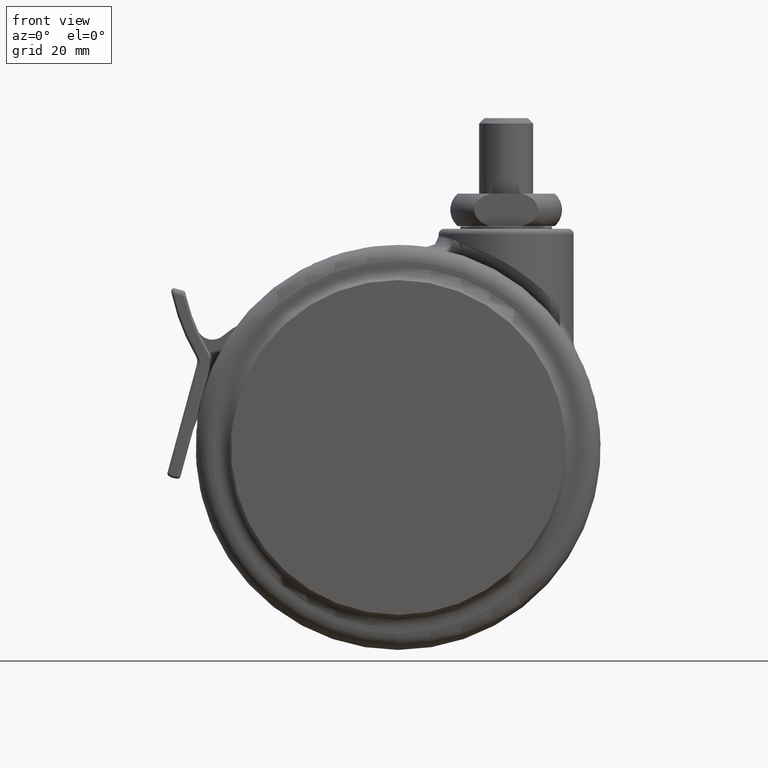
[diagram: clean part render]
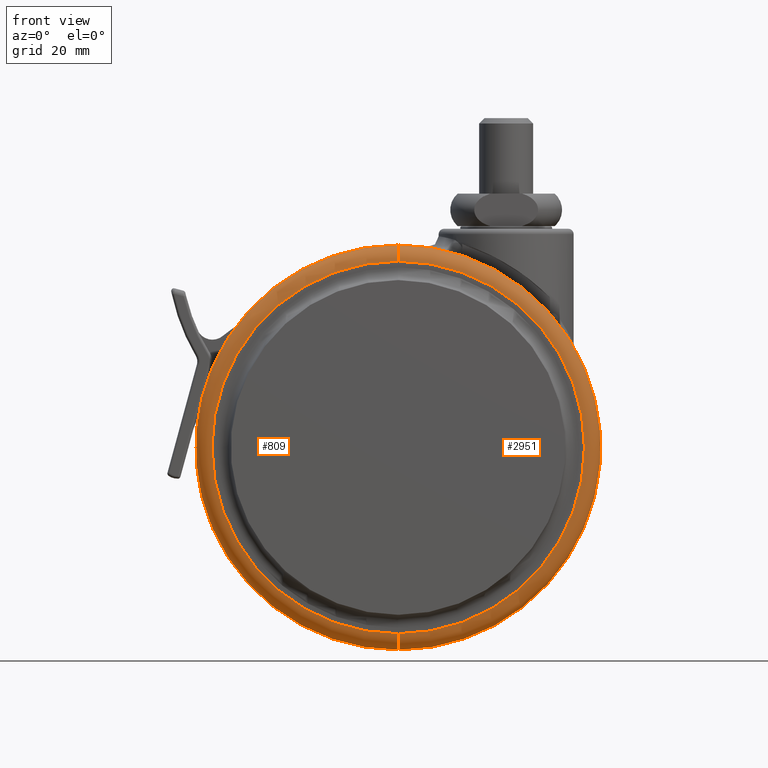
[diagram: same view with one multi-face feature highlighted, each face labeled with its STEP entity id]
A machine part, front view. The highlighted faces form ONE feature: a constant-radius fillet chain: 2 tangent blend faces with common blend radius 3 mm. The faces share edges in the B-rep.
Their STEP definitions:
[1] entity #809 (Torus):
#184 = CIRCLE ( 'NONE', #8429, 34.50000000000000700 ) ;
#292 = CARTESIAN_POINT ( 'NONE',  ( -19.99999999999999600, -18.50000000000000000, -3.000000000000000400 ) ) ;
#394 = DIRECTION ( 'NONE',  ( 0.0000000000000000000, -1.000000000000000000, 0.0000000000000000000 ) ) ;
#439 = EDGE_CURVE ( 'NONE', #2848, #5418, #4884, .T. ) ;
#521 = CARTESIAN_POINT ( 'NONE',  ( -20.00000000000000000, -18.50000000000000000, -78.00000000000001400 ) ) ;
#565 = CIRCLE ( 'NONE', #1340, 3.000000000000002700 ) ;
#809 = ADVANCED_FACE ( 'NONE', ( #5721 ), #7522, .T. ) ;
#918 = ORIENTED_EDGE ( 'NONE', *, *, #439, .F. ) ;
#1073 = DIRECTION ( 'NONE',  ( 0.0000000000000000000, 0.0000000000000000000, -1.000000000000000000 ) ) ;
#1340 = AXIS2_PLACEMENT_3D ( 'NONE', #3742, #8475, #4436 ) ;
#1737 = CARTESIAN_POINT ( 'NONE',  ( -20.00000000000000000, -18.50000000000000000, -40.50000000000000000 ) ) ;
#1750 = DIRECTION ( 'NONE',  ( 0.0000000000000000000, -1.000000000000000000, 0.0000000000000000000 ) ) ;
#2128 = CARTESIAN_POINT ( 'NONE',  ( -20.00000000000000000, -21.50000000000000000, -75.00000000000001400 ) ) ;
#2589 = CARTESIAN_POINT ( 'NONE',  ( -19.99999999999999600, -21.50000000000000000, -5.999999999999998200 ) ) ;
#2848 = VERTEX_POINT ( 'NONE', #292 ) ;
#2887 = CARTESIAN_POINT ( 'NONE',  ( -20.00000000000000000, -21.50000000000000000, -40.50000000000000000 ) ) ;
#3270 = EDGE_CURVE ( 'NONE', #5418, #7570, #184, .T. ) ;
#3484 = DIRECTION ( 'NONE',  ( 1.000000000000000000, 0.0000000000000000000, -1.224646799147353200E-016 ) ) ;
#3549 = DIRECTION ( 'NONE',  ( 0.0000000000000000000, 0.0000000000000000000, -1.000000000000000000 ) ) ;
#3742 = CARTESIAN_POINT ( 'NONE',  ( -20.00000000000000000, -18.50000000000000000, -75.00000000000001400 ) ) ;
#4042 = CIRCLE ( 'NONE', #5767, 37.50000000000000000 ) ;
#4436 = DIRECTION ( 'NONE',  ( 0.0000000000000000000, 0.0000000000000000000, 1.000000000000000000 ) ) ;
#4842 = VERTEX_POINT ( 'NONE', #521 ) ;
#4884 = CIRCLE ( 'NONE', #7936, 2.999999999999999100 ) ;
#4995 = ORIENTED_EDGE ( 'NONE', *, *, #5851, .T. ) ;
#5418 = VERTEX_POINT ( 'NONE', #2589 ) ;
#5444 = ORIENTED_EDGE ( 'NONE', *, *, #3270, .F. ) ;
#5721 = FACE_OUTER_BOUND ( 'NONE', #8749, .T. ) ;
#5767 = AXIS2_PLACEMENT_3D ( 'NONE', #5794, #1750, #6481 ) ;
#5794 = CARTESIAN_POINT ( 'NONE',  ( -20.00000000000000000, -18.50000000000000000, -40.50000000000000000 ) ) ;
#5851 = EDGE_CURVE ( 'NONE', #2848, #4842, #4042, .T. ) ;
#6481 = DIRECTION ( 'NONE',  ( 0.0000000000000000000, 0.0000000000000000000, -1.000000000000000000 ) ) ;
#6616 = EDGE_CURVE ( 'NONE', #4842, #7570, #565, .T. ) ;
#6844 = ORIENTED_EDGE ( 'NONE', *, *, #6616, .T. ) ;
#7422 = AXIS2_PLACEMENT_3D ( 'NONE', #1737, #394, #1073 ) ;
#7522 = TOROIDAL_SURFACE ( 'NONE', #7422, 34.50000000000000000, 3.000000000000000000 ) ;
#7549 = DIRECTION ( 'NONE',  ( 0.0000000000000000000, 0.0000000000000000000, -1.000000000000000000 ) ) ;
#7570 = VERTEX_POINT ( 'NONE', #2128 ) ;
#7620 = DIRECTION ( 'NONE',  ( 0.0000000000000000000, -1.000000000000000000, 0.0000000000000000000 ) ) ;
#7936 = AXIS2_PLACEMENT_3D ( 'NONE', #8680, #3484, #7549 ) ;
#8429 = AXIS2_PLACEMENT_3D ( 'NONE', #2887, #7620, #3549 ) ;
#8475 = DIRECTION ( 'NONE',  ( -1.000000000000000000, -0.0000000000000000000, -0.0000000000000000000 ) ) ;
#8680 = CARTESIAN_POINT ( 'NONE',  ( -19.99999999999999600, -18.50000000000000000, -5.999999999999998200 ) ) ;
#8749 = EDGE_LOOP ( 'NONE', ( #918, #4995, #6844, #5444 ) ) ;
[2] entity #2951 (Torus):
#292 = CARTESIAN_POINT ( 'NONE',  ( -19.99999999999999600, -18.50000000000000000, -3.000000000000000400 ) ) ;
#293 = TOROIDAL_SURFACE ( 'NONE', #6356, 34.50000000000000000, 3.000000000000000000 ) ;
#439 = EDGE_CURVE ( 'NONE', #2848, #5418, #4884, .T. ) ;
#521 = CARTESIAN_POINT ( 'NONE',  ( -20.00000000000000000, -18.50000000000000000, -78.00000000000001400 ) ) ;
#565 = CIRCLE ( 'NONE', #1340, 3.000000000000002700 ) ;
#601 = DIRECTION ( 'NONE',  ( 0.0000000000000000000, 0.0000000000000000000, -1.000000000000000000 ) ) ;
#1340 = AXIS2_PLACEMENT_3D ( 'NONE', #3742, #8475, #4436 ) ;
#1790 = DIRECTION ( 'NONE',  ( 0.0000000000000000000, -1.000000000000000000, 0.0000000000000000000 ) ) ;
#2128 = CARTESIAN_POINT ( 'NONE',  ( -20.00000000000000000, -21.50000000000000000, -75.00000000000001400 ) ) ;
#2381 = DIRECTION ( 'NONE',  ( 0.0000000000000000000, -1.000000000000000000, 0.0000000000000000000 ) ) ;
#2589 = CARTESIAN_POINT ( 'NONE',  ( -19.99999999999999600, -21.50000000000000000, -5.999999999999998200 ) ) ;
#2848 = VERTEX_POINT ( 'NONE', #292 ) ;
#2951 = ADVANCED_FACE ( 'NONE', ( #7490 ), #293, .T. ) ;
#3484 = DIRECTION ( 'NONE',  ( 1.000000000000000000, 0.0000000000000000000, -1.224646799147353200E-016 ) ) ;
#3742 = CARTESIAN_POINT ( 'NONE',  ( -20.00000000000000000, -18.50000000000000000, -75.00000000000001400 ) ) ;
#3792 = DIRECTION ( 'NONE',  ( 0.0000000000000000000, 0.0000000000000000000, -1.000000000000000000 ) ) ;
#3880 = ORIENTED_EDGE ( 'NONE', *, *, #7448, .T. ) ;
#3947 = ORIENTED_EDGE ( 'NONE', *, *, #5239, .F. ) ;
#4436 = DIRECTION ( 'NONE',  ( 0.0000000000000000000, 0.0000000000000000000, 1.000000000000000000 ) ) ;
#4575 = AXIS2_PLACEMENT_3D ( 'NONE', #8676, #4645, #601 ) ;
#4645 = DIRECTION ( 'NONE',  ( 0.0000000000000000000, -1.000000000000000000, 0.0000000000000000000 ) ) ;
#4675 = ORIENTED_EDGE ( 'NONE', *, *, #439, .T. ) ;
#4842 = VERTEX_POINT ( 'NONE', #521 ) ;
#4884 = CIRCLE ( 'NONE', #7936, 2.999999999999999100 ) ;
#5239 = EDGE_CURVE ( 'NONE', #7570, #5418, #6523, .T. ) ;
#5418 = VERTEX_POINT ( 'NONE', #2589 ) ;
#5828 = AXIS2_PLACEMENT_3D ( 'NONE', #6428, #2381, #7105 ) ;
#6049 = CIRCLE ( 'NONE', #4575, 37.50000000000000000 ) ;
#6356 = AXIS2_PLACEMENT_3D ( 'NONE', #7851, #1790, #3792 ) ;
#6428 = CARTESIAN_POINT ( 'NONE',  ( -20.00000000000000000, -21.50000000000000000, -40.50000000000000000 ) ) ;
#6523 = CIRCLE ( 'NONE', #5828, 34.50000000000000700 ) ;
#6616 = EDGE_CURVE ( 'NONE', #4842, #7570, #565, .T. ) ;
#7105 = DIRECTION ( 'NONE',  ( 0.0000000000000000000, 0.0000000000000000000, -1.000000000000000000 ) ) ;
#7448 = EDGE_CURVE ( 'NONE', #4842, #2848, #6049, .T. ) ;
#7490 = FACE_OUTER_BOUND ( 'NONE', #7561, .T. ) ;
#7549 = DIRECTION ( 'NONE',  ( 0.0000000000000000000, 0.0000000000000000000, -1.000000000000000000 ) ) ;
#7561 = EDGE_LOOP ( 'NONE', ( #3880, #4675, #3947, #8247 ) ) ;
#7570 = VERTEX_POINT ( 'NONE', #2128 ) ;
#7851 = CARTESIAN_POINT ( 'NONE',  ( -20.00000000000000000, -18.50000000000000000, -40.50000000000000000 ) ) ;
#7936 = AXIS2_PLACEMENT_3D ( 'NONE', #8680, #3484, #7549 ) ;
#8247 = ORIENTED_EDGE ( 'NONE', *, *, #6616, .F. ) ;
#8475 = DIRECTION ( 'NONE',  ( -1.000000000000000000, -0.0000000000000000000, -0.0000000000000000000 ) ) ;
#8676 = CARTESIAN_POINT ( 'NONE',  ( -20.00000000000000000, -18.50000000000000000, -40.50000000000000000 ) ) ;
#8680 = CARTESIAN_POINT ( 'NONE',  ( -19.99999999999999600, -18.50000000000000000, -5.999999999999998200 ) ) ;